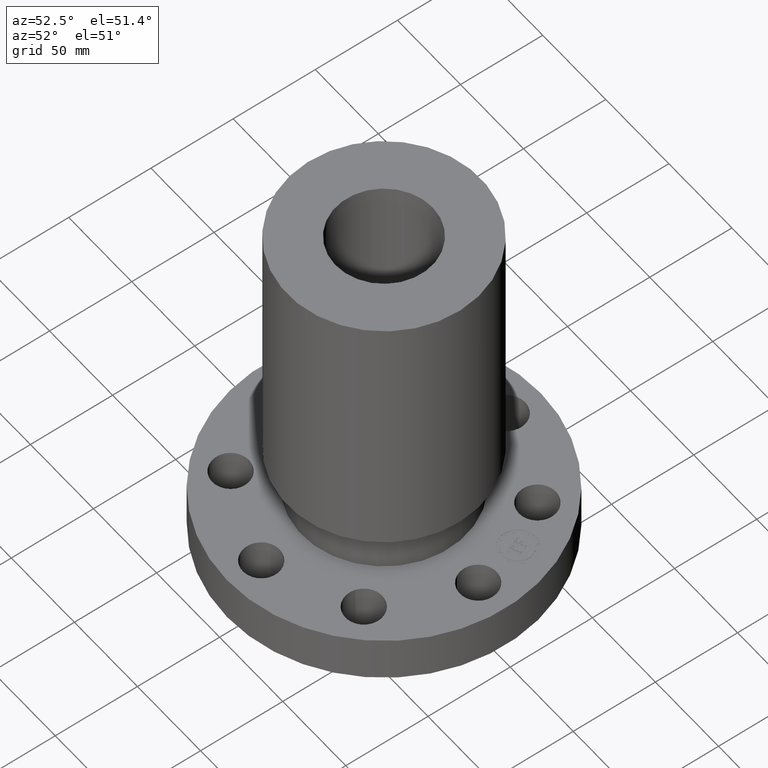
[diagram: clean part render]
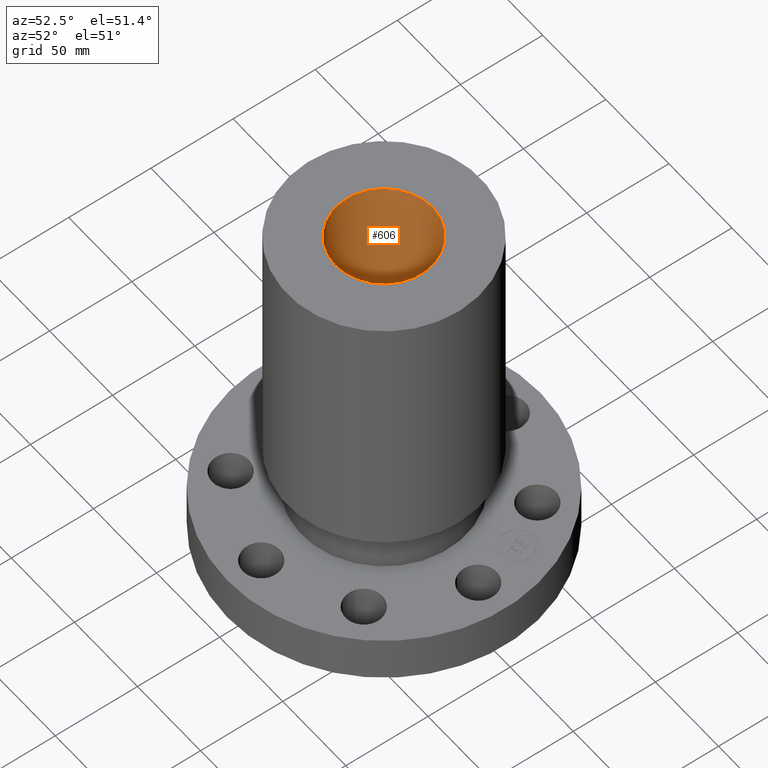
[diagram: same view with one face highlighted and labeled with its STEP entity id]
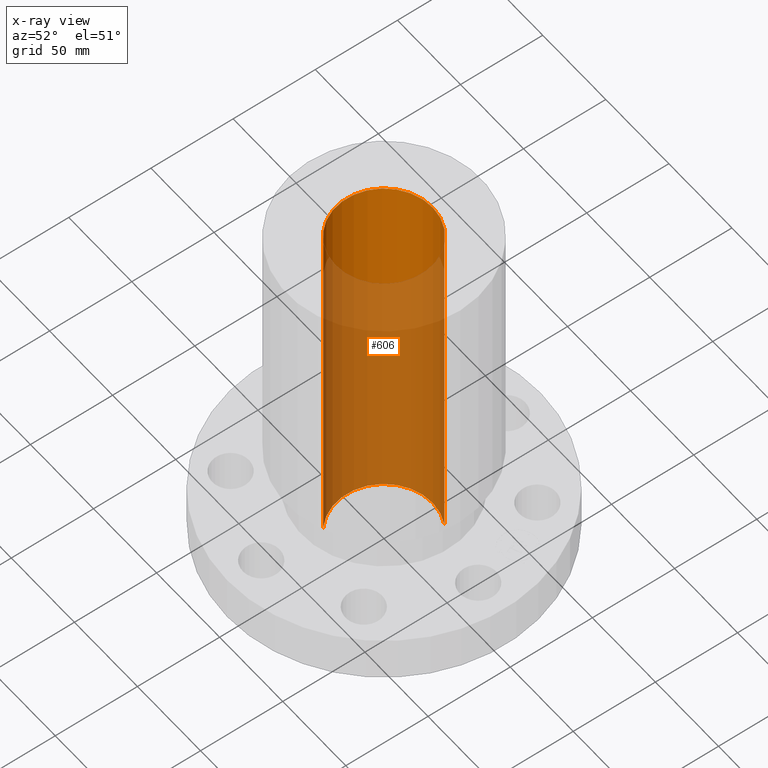
[diagram: x-ray of the same camera — body ghosted, the highlighted face saturated]
A machine part, auxiliary view. The second image highlights one B-rep face of the part: STEP entity #606.
The next image is the same camera in x-ray: the body ghosted, the highlighted face saturated — about 74% of this face is hidden behind the body in this view.
In plain terms, the highlighted cylindrical surface (partial cylindrical patch) has radius 29.464 mm, axis along (0, 0, -1).
Its self-contained STEP definition (entity closure, byte-faithful):
#547=AXIS2_PLACEMENT_3D('Circle Axis2P3D',#545,#546,$) ;
#567=AXIS2_PLACEMENT_3D('Cylinder Axis2P3D',#564,#565,#566) ;
#597=AXIS2_PLACEMENT_3D('Circle Axis2P3D',#595,#596,$) ;
#545=CARTESIAN_POINT('Axis2P3D Location',(0.,0.,8.75000000003)) ;
#549=CARTESIAN_POINT('Vertex',(-0.556133624783,-1.0179957718,8.75000000004)) ;
#551=CARTESIAN_POINT('Vertex',(0.556133624783,1.0179957718,8.75000000004)) ;
#564=CARTESIAN_POINT('Axis2P3D Location',(0.,0.,4.25000000002)) ;
#569=CARTESIAN_POINT('Line Origine',(0.556133624783,1.0179957718,4.25000000002)) ;
#573=CARTESIAN_POINT('Vertex',(0.556133624783,1.0179957718,-0.250000000001)) ;
#580=CARTESIAN_POINT('Vertex',(-0.556133624783,-1.0179957718,-0.250000000001)) ;
#583=CARTESIAN_POINT('Line Origine',(-0.556133624783,-1.0179957718,4.25000000002)) ;
#595=CARTESIAN_POINT('Axis2P3D Location',(0.,0.,-0.250000000001)) ;
#546=DIRECTION('Axis2P3D Direction',(0.,0.,-0.0393700787402)) ;
#565=DIRECTION('Axis2P3D Direction',(0.,0.,-0.0393700787402)) ;
#566=DIRECTION('Axis2P3D XDirection',(-0.0188750212049,-0.0345504945626,0.)) ;
#570=DIRECTION('Vector Direction',(0.,0.,-0.0393700787402)) ;
#584=DIRECTION('Vector Direction',(0.,0.,-0.0393700787402)) ;
#596=DIRECTION('Axis2P3D Direction',(0.,0.,-0.0393700787402)) ;
#571=VECTOR('Line Direction',#570,0.0393700787402) ;
#585=VECTOR('Line Direction',#584,0.0393700787402) ;
#601=ORIENTED_EDGE('',*,*,#553,.F.) ;
#602=ORIENTED_EDGE('',*,*,#587,.T.) ;
#603=ORIENTED_EDGE('',*,*,#599,.T.) ;
#604=ORIENTED_EDGE('',*,*,#575,.F.) ;
#606=ADVANCED_FACE('PartBody',(#605),#568,.F.) ;
#548=CIRCLE('generated circle',#547,1.16) ;
#598=CIRCLE('generated circle',#597,1.16) ;
#568=CYLINDRICAL_SURFACE('generated cylinder',#567,1.16) ;
#553=EDGE_CURVE('',#550,#552,#548,.T.) ;
#575=EDGE_CURVE('',#552,#574,#572,.T.) ;
#587=EDGE_CURVE('',#550,#581,#586,.T.) ;
#599=EDGE_CURVE('',#581,#574,#598,.T.) ;
#600=EDGE_LOOP('',(#601,#602,#603,#604)) ;
#605=FACE_OUTER_BOUND('',#600,.T.) ;
#572=LINE('Line',#569,#571) ;
#586=LINE('Line',#583,#585) ;
#550=VERTEX_POINT('',#549) ;
#552=VERTEX_POINT('',#551) ;
#574=VERTEX_POINT('',#573) ;
#581=VERTEX_POINT('',#580) ;